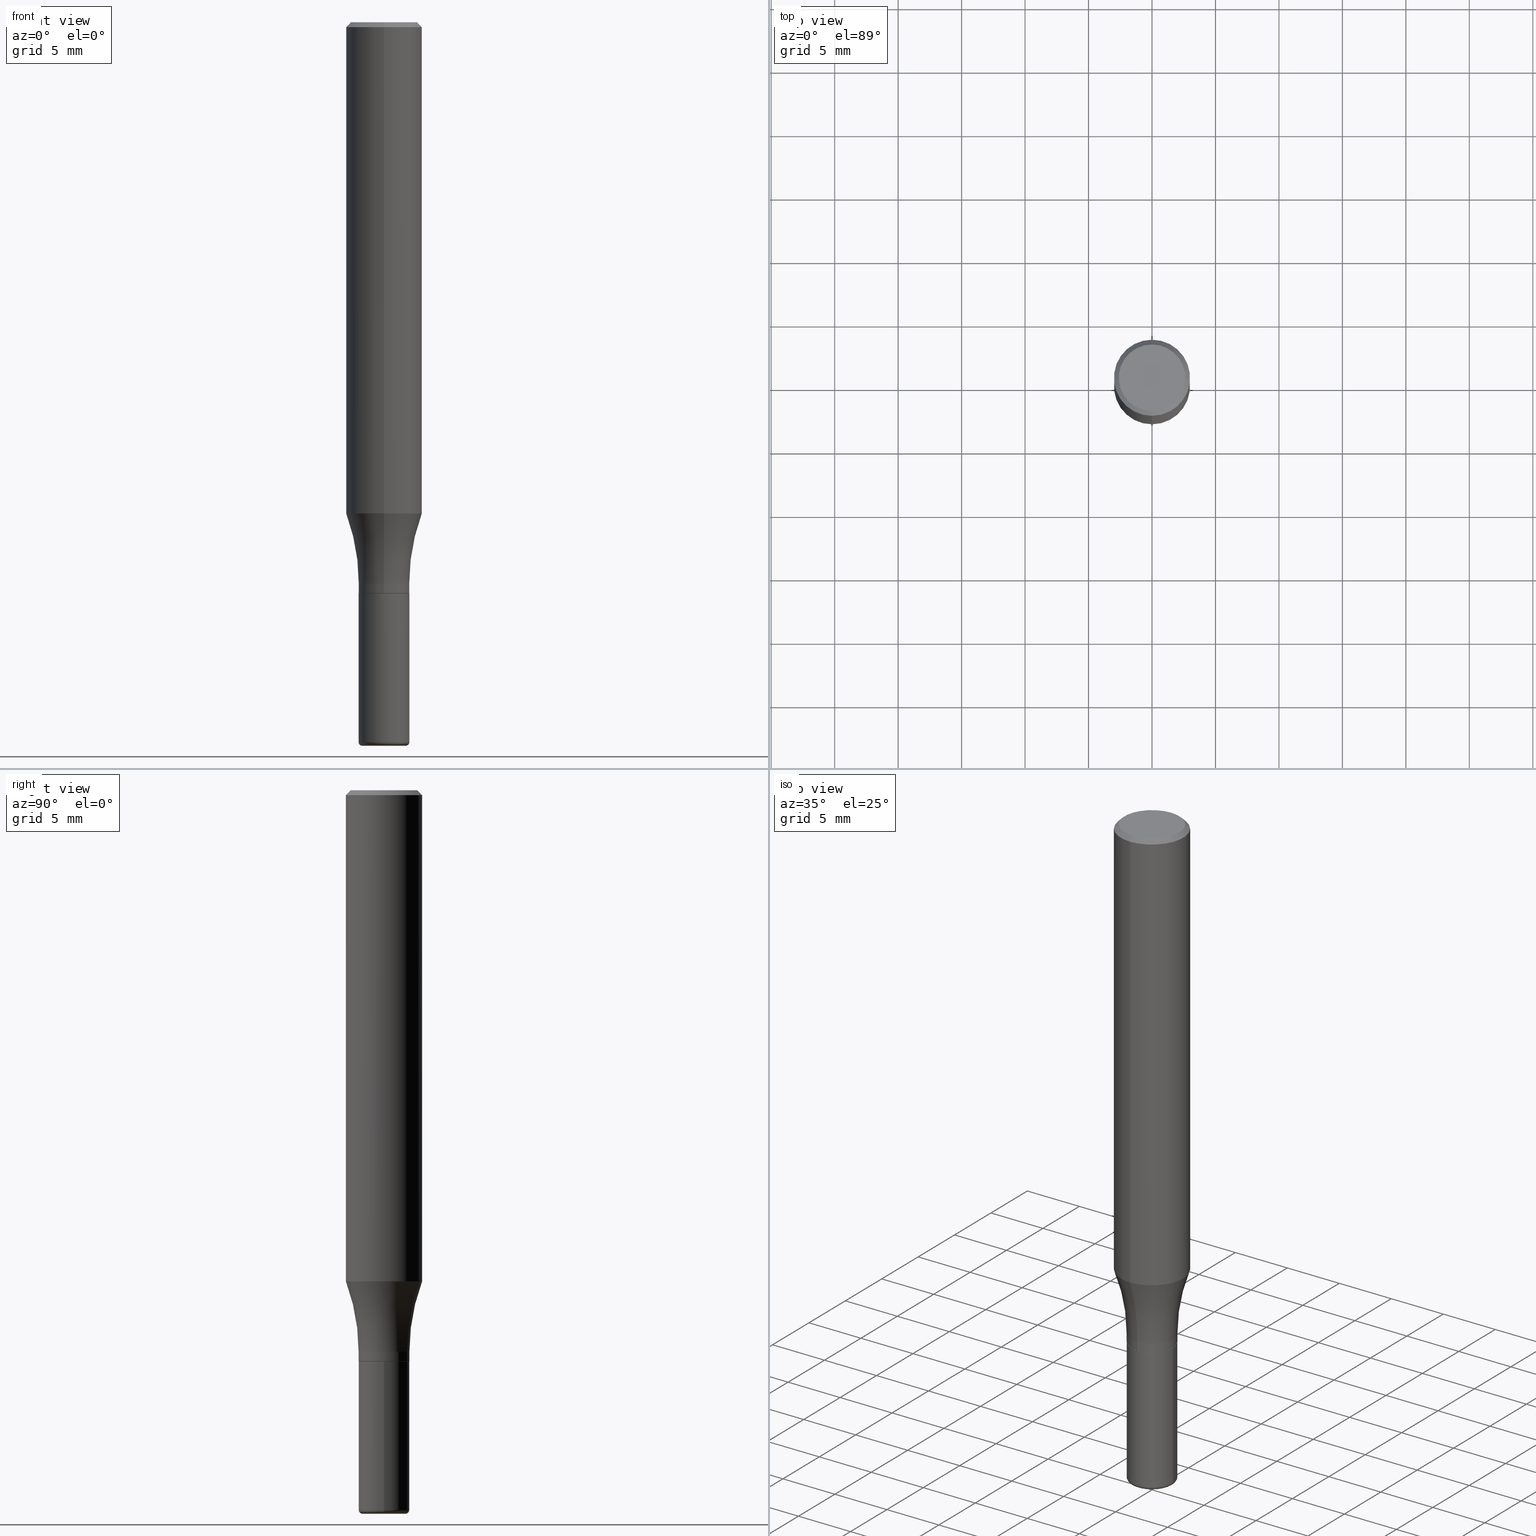
[diagram: canonical four-view strip — front | top / right | iso, engineering-drawing reading convention]
A machine part, canonical four-view strip (front | top / right | iso — engineering-drawing reading convention). The complete STEP part file that produces these views, byte-faithful:
ISO-10303-21;
HEADER;
FILE_DESCRIPTION (( 'STEP AP203' ),
    '1' );
FILE_NAME ('43446.STEP',
    '2024-02-29T19:33:05',
    ( '' ),
    ( '' ),
    'SwSTEP 2.0',
    'SolidWorks 2023',
    '' );
FILE_SCHEMA (( 'CONFIG_CONTROL_DESIGN' ));
ENDSEC;

DATA;
#1 = SECURITY_CLASSIFICATION_LEVEL ( 'unclassified' ) ;
#2 = ORIENTED_EDGE ( 'NONE', *, *, #412, .T. ) ;
#3 = CARTESIAN_POINT ( 'NONE',  ( 7.723156721521011834E-16, 0.1031000000000000111, -8.678692666830198749E-17 ) ) ;
#4 = AXIS2_PLACEMENT_3D ( 'NONE', #15, #174, #250 ) ;
#5 = CARTESIAN_POINT ( 'NONE',  ( 4.333291662919082677E-29, -6.184920093642825861E-15, -1.771700000000000497 ) ) ;
#6 = DIRECTION ( 'NONE',  ( -2.445838269977468989E-29, 3.490952245663952321E-15, 1.000000000000000000 ) ) ;
#7 = LINE ( 'NONE', #309, #206 ) ;
#8 = AXIS2_PLACEMENT_3D ( 'NONE', #397, #194, #283 ) ;
#9 = DIRECTION ( 'NONE',  ( -2.445468806185136597E-29, 3.491481338843145583E-15, 1.000000000000000000 ) ) ;
#10 = EDGE_LOOP ( 'NONE', ( #456, #177 ) ) ;
#11 = DIRECTION ( 'NONE',  ( -2.445838269977468989E-29, 3.490952245663952321E-15, 1.000000000000000000 ) ) ;
#12 = ORIENTED_EDGE ( 'NONE', *, *, #248, .T. ) ;
#13 = ORIENTED_EDGE ( 'NONE', *, *, #277, .F. ) ;
#14 = CARTESIAN_POINT ( 'NONE',  ( 4.259273019732651791E-29, -6.081113047863105345E-15, -1.741699999999999582 ) ) ;
#15 = CARTESIAN_POINT ( 'NONE',  ( 4.333291662919082677E-29, -6.184920093642825861E-15, -1.771700000000000497 ) ) ;
#16 = ORIENTED_EDGE ( 'NONE', *, *, #374, .T. ) ;
#17 = EDGE_LOOP ( 'NONE', ( #259, #300, #46, #376 ) ) ;
#18 = CARTESIAN_POINT ( 'NONE',  ( 5.487876547960064752E-29, -7.835233272497900762E-15, -2.244099999999999540 ) ) ;
#19 = AXIS2_PLACEMENT_3D ( 'NONE', #62, #213, #343 ) ;
#20 = CALENDAR_DATE ( 2024, 29, 2 ) ;
#21 = EDGE_CURVE ( 'NONE', #63, #22, #450, .T. ) ;
#22 = VERTEX_POINT ( 'NONE', #338 ) ;
#23 = CARTESIAN_POINT ( 'NONE',  ( -8.246878922347106931E-16, -0.1181000000000053951, -1.523436220366272131 ) ) ;
#24 = MECHANICAL_CONTEXT ( 'NONE', #238, 'mechanical' ) ;
#25 = TOROIDAL_SURFACE ( 'NONE', #101, 0.7037499999999999867, 0.6250000000000000000 ) ;
#26 = PLANE ( 'NONE',  #307 ) ;
#27 = CC_DESIGN_APPROVAL ( #269, ( #364 ) ) ;
#28 = AXIS2_PLACEMENT_3D ( 'NONE', #189, #314, #311 ) ;
#29 = PERSON_AND_ORGANIZATION ( #360, #417 ) ;
#30 = COORDINATED_UNIVERSAL_TIME_OFFSET ( 5, 0, .BEHIND. ) ;
#31 = DIRECTION ( 'NONE',  ( -4.937700262166401865E-15, -0.7071067811868105846, 0.7071067811862842278 ) ) ;
#32 = CARTESIAN_POINT ( 'NONE',  ( -6.680324177952438221E-45, 9.534846591063069195E-31, 2.731302498596515053E-16 ) ) ;
#33 = AXIS2_PLACEMENT_3D ( 'NONE', #155, #319, #161 ) ;
#34 = DIRECTION ( 'NONE',  ( 2.445838269977468989E-29, -3.490952245663951927E-15, -1.000000000000000000 ) ) ;
#35 = EDGE_CURVE ( 'NONE', #172, #449, #398, .T. ) ;
#36 = EDGE_LOOP ( 'NONE', ( #131, #413 ) ) ;
#37 = FACE_OUTER_BOUND ( 'NONE', #463, .T. ) ;
#38 = ORIENTED_EDGE ( 'NONE', *, *, #482, .T. ) ;
#39 = DIRECTION ( 'NONE',  ( -6.982962677686265922E-15, -1.000000000000000000, 3.490952245663952321E-15 ) ) ;
#40 = CIRCLE ( 'NONE', #434, 0.1181000000000000383 ) ;
#41 = APPROVAL_ROLE ( '' ) ;
#42 = VECTOR ( 'NONE', #31, 39.37007874015748854 ) ;
#43 = EDGE_LOOP ( 'NONE', ( #103, #373, #201, #440 ) ) ;
#44 = CYLINDRICAL_SURFACE ( 'NONE', #312, 0.07874999999999995892 ) ;
#45 = ADVANCED_FACE ( 'NONE', ( #108 ), #82, .T. ) ;
#46 = ORIENTED_EDGE ( 'NONE', *, *, #69, .T. ) ;
#47 = DIRECTION ( 'NONE',  ( -2.445838269977468989E-29, 3.490952245663952321E-15, 1.000000000000000000 ) ) ;
#48 = LINE ( 'NONE', #465, #418 ) ;
#49 = ADVANCED_BREP_SHAPE_REPRESENTATION ( '43446', ( #73, #239, #123 ), #158 ) ;
#50 = CARTESIAN_POINT ( 'NONE',  ( 3.668757404966126376E-31, -5.236428368495817893E-17, -0.01499999999999968373 ) ) ;
#51 = DIRECTION ( 'NONE',  ( -2.445468806185136877E-29, 3.491481338843145188E-15, 1.000000000000000000 ) ) ;
#52 = CARTESIAN_POINT ( 'NONE',  ( 8.391509709327160624E-16, 0.1180999999999946676, -1.523436220366273020 ) ) ;
#53 = LOCAL_TIME ( 14, 33, 5.000000000000000000, #477 ) ;
#54 = CIRCLE ( 'NONE', #292, 0.1181000000000000383 ) ;
#55 = TOROIDAL_SURFACE ( 'NONE', #226, 0.06694999999999999563, 0.01179999999999993381 ) ;
#56 = ORIENTED_EDGE ( 'NONE', *, *, #350, .F. ) ;
#57 = DIRECTION ( 'NONE',  ( -2.445838269977468989E-29, 3.490952245663952321E-15, 1.000000000000000000 ) ) ;
#58 = ORIENTED_EDGE ( 'NONE', *, *, #185, .T. ) ;
#59 = EDGE_CURVE ( 'NONE', #63, #383, #48, .T. ) ;
#60 = DIRECTION ( 'NONE',  ( -6.982962677686265922E-15, -1.000000000000000000, 3.490952245663951927E-15 ) ) ;
#61 = VERTEX_POINT ( 'NONE', #265 ) ;
#62 = CARTESIAN_POINT ( 'NONE',  ( 0.000000000000000000, 0.000000000000000000, 0.000000000000000000 ) ) ;
#63 = VERTEX_POINT ( 'NONE', #117 ) ;
#64 = CARTESIAN_POINT ( 'NONE',  ( -0.07874999999999994504, -6.430393235952897589E-15, -2.232299999999999951 ) ) ;
#65 = EDGE_LOOP ( 'NONE', ( #124, #297, #211, #505 ) ) ;
#66 = ORIENTED_EDGE ( 'NONE', *, *, #115, .T. ) ;
#67 =( CONVERSION_BASED_UNIT ( 'INCH', #143 ) LENGTH_UNIT ( ) NAMED_UNIT ( #118 ) );
#68 = VECTOR ( 'NONE', #407, 39.37007874015748143 ) ;
#69 = EDGE_CURVE ( 'NONE', #22, #335, #504, .T. ) ;
#70 = ORIENTED_EDGE ( 'NONE', *, *, #139, .T. ) ;
#71 = DIRECTION ( 'NONE',  ( 1.000000000000000000, -6.982962677686266711E-15, 0.000000000000000000 ) ) ;
#72 = DIRECTION ( 'NONE',  ( -1.000000000000000000, 6.982962677686265922E-15, -4.876176775795935793E-29 ) ) ;
#73 = MANIFOLD_SOLID_BREP ( 'Body-Move/Copy2[1]', #270 ) ;
#74 = PERSON_AND_ORGANIZATION ( #360, #417 ) ;
#75 = AXIS2_PLACEMENT_3D ( 'NONE', #107, #369, #299 ) ;
#76 = AXIS2_PLACEMENT_3D ( 'NONE', #5, #492, #285 ) ;
#77 = ADVANCED_FACE ( 'NONE', ( #148 ), #26, .F. ) ;
#78 = DIRECTION ( 'NONE',  ( 5.024295867789948556E-15, 0.7071067811868154696, 0.7071067811862793429 ) ) ;
#79 = PERSON_AND_ORGANIZATION ( #360, #417 ) ;
#80 = DIRECTION ( 'NONE',  ( 1.000000000000000000, -7.105427357601001070E-15, 4.926309029019398732E-29 ) ) ;
#81 = EDGE_CURVE ( 'NONE', #88, #358, #187, .T. ) ;
#82 = CONICAL_SURFACE ( 'NONE', #207, 0.1180999999999999966, 0.7853981633974495002 ) ;
#83 = EDGE_CURVE ( 'NONE', #420, #111, #321, .T. ) ;
#84 = ORIENTED_EDGE ( 'NONE', *, *, #275, .T. ) ;
#85 = DIRECTION ( 'NONE',  ( -6.982962677686265922E-15, -1.000000000000000000, 3.490952245663952716E-15 ) ) ;
#86 = PERSON_AND_ORGANIZATION ( #360, #417 ) ;
#87 = DIRECTION ( 'NONE',  ( -6.982962677686265922E-15, -1.000000000000000000, 4.626330217890367758E-15 ) ) ;
#88 = VERTEX_POINT ( 'NONE', #114 ) ;
#89 = EDGE_CURVE ( 'NONE', #345, #486, #137, .T. ) ;
#90 = DIRECTION ( 'NONE',  ( -2.445838269977468989E-29, 3.490952245663952321E-15, 1.000000000000000000 ) ) ;
#91 = LOCAL_TIME ( 14, 33, 5.000000000000000000, #425 ) ;
#92 = CARTESIAN_POINT ( 'NONE',  ( -5.499083108677931485E-16, -0.07874999999999995892, 2.749124893460361432E-16 ) ) ;
#93 = AXIS2_PLACEMENT_3D ( 'NONE', #478, #121, #236 ) ;
#94 = PLANE ( 'NONE',  #466 ) ;
#95 = CARTESIAN_POINT ( 'NONE',  ( 3.668757404966126376E-31, -5.236428368495817893E-17, -0.01499999999999968373 ) ) ;
#96 = CARTESIAN_POINT ( 'NONE',  ( -4.914259984421666652E-15, -0.7037500000000060929, -1.741699999999997139 ) ) ;
#97 = CARTESIAN_POINT ( 'NONE',  ( 3.726078609641658463E-29, -5.318243094613442822E-15, -1.523436220366272575 ) ) ;
#98 = VERTEX_POINT ( 'NONE', #181 ) ;
#99 = DIRECTION ( 'NONE',  ( -1.000000000000000000, 6.982962677686265922E-15, -4.883557194083112340E-29 ) ) ;
#100 = CC_DESIGN_DATE_AND_TIME_ASSIGNMENT ( #346, #351, ( #364 ) ) ;
#101 = AXIS2_PLACEMENT_3D ( 'NONE', #14, #132, #375 ) ;
#102 = PRODUCT_DEFINITION_FORMATION_WITH_SPECIFIED_SOURCE ( 'ANY', '', #322, .NOT_KNOWN. ) ;
#103 = ORIENTED_EDGE ( 'NONE', *, *, #350, .T. ) ;
#104 = EDGE_CURVE ( 'NONE', #160, #98, #515, .T. ) ;
#105 = DIRECTION ( 'NONE',  ( -2.445468806185136597E-29, 3.491481338843145583E-15, 1.000000000000000000 ) ) ;
#106 = ORIENTED_EDGE ( 'NONE', *, *, #248, .F. ) ;
#107 = CARTESIAN_POINT ( 'NONE',  ( 0.06694999999999999563, -8.261543143970648500E-15, -2.232299999999999951 ) ) ;
#108 = FACE_OUTER_BOUND ( 'NONE', #289, .T. ) ;
#109 = ORIENTED_EDGE ( 'NONE', *, *, #89, .T. ) ;
#110 = APPROVAL_STATUS ( 'not_yet_approved' ) ;
#111 = VERTEX_POINT ( 'NONE', #453 ) ;
#112 = LINE ( 'NONE', #511, #509 ) ;
#113 = CARTESIAN_POINT ( 'NONE',  ( 5.459020016047079569E-29, -7.794033792699553278E-15, -2.232299999999999951 ) ) ;
#114 = CARTESIAN_POINT ( 'NONE',  ( 6.993516876719189285E-16, 0.07874999999999386657, -1.741699999999999804 ) ) ;
#115 = EDGE_CURVE ( 'NONE', #385, #484, #40, .T. ) ;
#116 = CIRCLE ( 'NONE', #473, 0.1031000000000000111 ) ;
#117 = CARTESIAN_POINT ( 'NONE',  ( 5.577760475717216412E-16, 0.07824999999999379674, -1.771700000000000719 ) ) ;
#118 = DIMENSIONAL_EXPONENTS ( 1.000000000000000000, 0.000000000000000000, 0.000000000000000000, 0.000000000000000000, 0.000000000000000000, 0.000000000000000000, 0.000000000000000000 ) ;
#119 = LINE ( 'NONE', #363, #244 ) ;
#120 = ADVANCED_FACE ( 'NONE', ( #332 ), #122, .T. ) ;
#121 = DIRECTION ( 'NONE',  ( -2.445468806185136597E-29, 3.491481338843145583E-15, 1.000000000000000000 ) ) ;
#122 = CONICAL_SURFACE ( 'NONE', #76, 0.07824999999999997236, 0.7853981633978239785 ) ;
#123 = AXIS2_PLACEMENT_3D ( 'NONE', #223, #349, #435 ) ;
#124 = ORIENTED_EDGE ( 'NONE', *, *, #115, .F. ) ;
#125 = LINE ( 'NONE', #447, #381 ) ;
#126 = CARTESIAN_POINT ( 'NONE',  ( 0.000000000000000000, 0.000000000000000000, 0.000000000000000000 ) ) ;
#127 = CYLINDRICAL_SURFACE ( 'NONE', #479, 0.1181000000000000105 ) ;
#128 = CONICAL_SURFACE ( 'NONE', #416, 0.1180999999999999966, 0.7853981633974495002 ) ;
#129 = EDGE_LOOP ( 'NONE', ( #263, #134, #429, #271 ) ) ;
#130 = DIRECTION ( 'NONE',  ( -2.445838269977468989E-29, 3.490952245663952321E-15, 1.000000000000000000 ) ) ;
#131 = ORIENTED_EDGE ( 'NONE', *, *, #423, .F. ) ;
#132 = DIRECTION ( 'NONE',  ( -2.445838269977468989E-29, 3.490952245663952321E-15, 1.000000000000000000 ) ) ;
#133 = APPROVAL ( #110, 'UNSPECIFIED' ) ;
#134 = ORIENTED_EDGE ( 'NONE', *, *, #313, .T. ) ;
#135 = DIRECTION ( 'NONE',  ( 1.000000000000000000, -6.982962677686266711E-15, 4.883557194083113462E-29 ) ) ;
#136 = CARTESIAN_POINT ( 'NONE',  ( 4.332068743784095231E-29, -6.183174617519995461E-15, -1.771200000000000774 ) ) ;
#137 = CIRCLE ( 'NONE', #218, 0.07874999999999994504 ) ;
#138 = DIRECTION ( 'NONE',  ( -2.445838269977468989E-29, 3.490952245663952321E-15, 1.000000000000000000 ) ) ;
#139 = EDGE_CURVE ( 'NONE', #486, #403, #323, .T. ) ;
#140 = ORIENTED_EDGE ( 'NONE', *, *, #83, .T. ) ;
#141 = CYLINDRICAL_SURFACE ( 'NONE', #157, 0.07874999999999997280 ) ;
#142 = EDGE_LOOP ( 'NONE', ( #220, #494, #260, #365 ) ) ;
#143 = LENGTH_MEASURE_WITH_UNIT ( LENGTH_MEASURE( 0.02539999999999999897 ), #432 );
#144 = CIRCLE ( 'NONE', #205, 0.07874999999999994504 ) ;
#145 = CIRCLE ( 'NONE', #460, 0.06694999999999999563 ) ;
#146 = PERSON_AND_ORGANIZATION_ROLE ( 'creator' ) ;
#147 = DESIGN_CONTEXT ( 'detailed design', #427, 'design' ) ;
#148 = FACE_OUTER_BOUND ( 'NONE', #282, .T. ) ;
#149 = APPROVAL_DATE_TIME ( #503, #269 ) ;
#150 = AXIS2_PLACEMENT_3D ( 'NONE', #169, #178, #209 ) ;
#151 = CLOSED_SHELL ( 'NONE', ( #175, #163, #120, #294, #507, #318, #164, #446, #474, #229, #45, #257 ) ) ;
#152 = EDGE_CURVE ( 'NONE', #335, #358, #326, .T. ) ;
#153 = CARTESIAN_POINT ( 'NONE',  ( 4.332068743784095231E-29, -6.183174617519995461E-15, -1.771200000000000774 ) ) ;
#154 = ORIENTED_EDGE ( 'NONE', *, *, #168, .T. ) ;
#155 = CARTESIAN_POINT ( 'NONE',  ( -0.06694999999999999563, -7.318325431108165741E-15, -2.232299999999999951 ) ) ;
#156 = DIRECTION ( 'NONE',  ( 6.982962677686265922E-15, 1.000000000000000000, -3.490952245663951927E-15 ) ) ;
#157 = AXIS2_PLACEMENT_3D ( 'NONE', #166, #105, #333 ) ;
#158 =( GEOMETRIC_REPRESENTATION_CONTEXT ( 3 ) GLOBAL_UNCERTAINTY_ASSIGNED_CONTEXT ( ( #342 ) ) GLOBAL_UNIT_ASSIGNED_CONTEXT ( ( #67, #221, #183 ) ) REPRESENTATION_CONTEXT ( 'NONE', 'WORKASPACE' ) );
#159 = DIRECTION ( 'NONE',  ( -2.445838269977468989E-29, 3.490952245663952321E-15, 1.000000000000000000 ) ) ;
#160 = VERTEX_POINT ( 'NONE', #384 ) ;
#161 = DIRECTION ( 'NONE',  ( -1.000000000000000000, 7.105427357601033413E-15, 0.000000000000000000 ) ) ;
#162 = ADVANCED_FACE ( 'NONE', ( #230 ), #237, .T. ) ;
#163 = ADVANCED_FACE ( 'NONE', ( #501 ), #128, .T. ) ;
#164 = ADVANCED_FACE ( 'NONE', ( #200 ), #44, .T. ) ;
#165 = CARTESIAN_POINT ( 'NONE',  ( 4.259916514819756909E-29, -6.080191526272904006E-15, -1.741699999999999582 ) ) ;
#166 = CARTESIAN_POINT ( 'NONE',  ( 0.000000000000000000, 0.000000000000000000, 0.000000000000000000 ) ) ;
#167 = AXIS2_PLACEMENT_3D ( 'NONE', #136, #130, #249 ) ;
#168 = EDGE_CURVE ( 'NONE', #449, #160, #519, .T. ) ;
#169 = CARTESIAN_POINT ( 'NONE',  ( 4.333291662919082677E-29, -6.184920093642825861E-15, -1.771700000000000497 ) ) ;
#170 = DIRECTION ( 'NONE',  ( 1.000000000000000000, -6.982962677686261977E-15, 0.000000000000000000 ) ) ;
#171 = ORIENTED_EDGE ( 'NONE', *, *, #423, .T. ) ;
#172 = VERTEX_POINT ( 'NONE', #3 ) ;
#173 = CARTESIAN_POINT ( 'NONE',  ( -5.499083108677499583E-16, -0.07875000000000616229, -1.771200000000000552 ) ) ;
#174 = DIRECTION ( 'NONE',  ( -2.445838269977468989E-29, 3.490952245663952321E-15, 1.000000000000000000 ) ) ;
#175 = ADVANCED_FACE ( 'NONE', ( #367 ), #127, .T. ) ;
#176 = CIRCLE ( 'NONE', #224, 0.07875000000000000056 ) ;
#177 = ORIENTED_EDGE ( 'NONE', *, *, #83, .F. ) ;
#178 = DIRECTION ( 'NONE',  ( -2.445838269977468989E-29, 3.490952245663952321E-15, 1.000000000000000000 ) ) ;
#179 = APPROVAL_ROLE ( '' ) ;
#180 = DIRECTION ( 'NONE',  ( -6.982962677686266711E-15, -1.000000000000000000, 3.490952245663952321E-15 ) ) ;
#181 = CARTESIAN_POINT ( 'NONE',  ( 8.246878922347483612E-16, 0.1180999999999999411, -0.01500000000000009659 ) ) ;
#182 = AXIS2_PLACEMENT_3D ( 'NONE', #405, #353, #39 ) ;
#183 =( NAMED_UNIT ( * ) SI_UNIT ( $, .STERADIAN. ) SOLID_ANGLE_UNIT ( ) );
#184 = APPROVAL_PERSON_ORGANIZATION ( #74, #269, #225 ) ;
#185 = EDGE_CURVE ( 'NONE', #449, #172, #116, .T. ) ;
#186 = DIRECTION ( 'NONE',  ( 1.000000000000000000, -6.982962677686269866E-15, 0.000000000000000000 ) ) ;
#187 = CIRCLE ( 'NONE', #28, 0.07874999999999994504 ) ;
#188 = COORDINATED_UNIVERSAL_TIME_OFFSET ( 5, 0, .BEHIND. ) ;
#189 = CARTESIAN_POINT ( 'NONE',  ( 4.259916514819756909E-29, -6.080191526272904006E-15, -1.741699999999999582 ) ) ;
#190 = CC_DESIGN_APPROVAL ( #520, ( #380 ) ) ;
#191 = FACE_OUTER_BOUND ( 'NONE', #43, .T. ) ;
#192 = AXIS2_PLACEMENT_3D ( 'NONE', #448, #80, #233 ) ;
#193 = DIRECTION ( 'NONE',  ( -6.982962677686265922E-15, -1.000000000000000000, 3.490952245663952716E-15 ) ) ;
#194 = DIRECTION ( 'NONE',  ( -2.445468806185136597E-29, 3.491481338843145583E-15, 1.000000000000000000 ) ) ;
#195 = APPROVAL_DATE_TIME ( #475, #520 ) ;
#196 = CYLINDRICAL_SURFACE ( 'NONE', #305, 0.07874999999999995892 ) ;
#197 = VECTOR ( 'NONE', #495, 39.37007874015748143 ) ;
#198 = CALENDAR_DATE ( 2024, 29, 2 ) ;
#199 = EDGE_LOOP ( 'NONE', ( #401, #154, #336, #284 ) ) ;
#200 = FACE_OUTER_BOUND ( 'NONE', #129, .T. ) ;
#201 = ORIENTED_EDGE ( 'NONE', *, *, #298, .F. ) ;
#202 = DIRECTION ( 'NONE',  ( -2.445468806185136597E-29, 3.491481338843145583E-15, 1.000000000000000000 ) ) ;
#203 = ADVANCED_FACE ( 'NONE', ( #402 ), #370, .T. ) ;
#204 = FACE_OUTER_BOUND ( 'NONE', #216, .T. ) ;
#205 = AXIS2_PLACEMENT_3D ( 'NONE', #165, #327, #517 ) ;
#206 = VECTOR ( 'NONE', #471, 39.37007874015748143 ) ;
#207 = AXIS2_PLACEMENT_3D ( 'NONE', #95, #247, #409 ) ;
#208 = EDGE_LOOP ( 'NONE', ( #84, #445, #499, #493 ) ) ;
#209 = DIRECTION ( 'NONE',  ( -6.982962677686267499E-15, -1.000000000000000000, 3.491179544618867914E-15 ) ) ;
#210 = ORIENTED_EDGE ( 'NONE', *, *, #89, .F. ) ;
#211 = ORIENTED_EDGE ( 'NONE', *, *, #81, .T. ) ;
#212 = EDGE_LOOP ( 'NONE', ( #361, #109, #70, #488 ) ) ;
#213 = DIRECTION ( 'NONE',  ( -2.445468806185136597E-29, 3.491481338843145583E-15, 1.000000000000000000 ) ) ;
#214 = ORIENTED_EDGE ( 'NONE', *, *, #266, .T. ) ;
#215 = CARTESIAN_POINT ( 'NONE',  ( 0.07875000000000000056, -6.735765798896194427E-15, -1.771700000000000053 ) ) ;
#216 = EDGE_LOOP ( 'NONE', ( #286, #13, #378, #278 ) ) ;
#217 = APPROVAL_PERSON_ORGANIZATION ( #506, #133, #179 ) ;
#218 = AXIS2_PLACEMENT_3D ( 'NONE', #113, #431, #71 ) ;
#219 = ORIENTED_EDGE ( 'NONE', *, *, #414, .T. ) ;
#220 = ORIENTED_EDGE ( 'NONE', *, *, #277, .T. ) ;
#221 =( NAMED_UNIT ( * ) PLANE_ANGLE_UNIT ( ) SI_UNIT ( $, .RADIAN. ) );
#222 = EDGE_CURVE ( 'NONE', #385, #88, #352, .T. ) ;
#223 = CARTESIAN_POINT ( 'NONE',  ( 0.000000000000000000, 0.000000000000000000, 0.000000000000000000 ) ) ;
#224 = AXIS2_PLACEMENT_3D ( 'NONE', #325, #481, #395 ) ;
#225 = APPROVAL_ROLE ( '' ) ;
#226 = AXIS2_PLACEMENT_3D ( 'NONE', #415, #258, #135 ) ;
#227 = AXIS2_PLACEMENT_3D ( 'NONE', #310, #469, #186 ) ;
#228 = CALENDAR_DATE ( 2024, 29, 2 ) ;
#229 = ADVANCED_FACE ( 'NONE', ( #37 ), #94, .F. ) ;
#230 = FACE_OUTER_BOUND ( 'NONE', #212, .T. ) ;
#231 = PERSON_AND_ORGANIZATION_ROLE ( 'design_supplier' ) ;
#232 = CC_DESIGN_SECURITY_CLASSIFICATION ( #380, ( #102 ) ) ;
#233 = DIRECTION ( 'NONE',  ( 7.105427357601001859E-15, 1.000000000000000000, 0.000000000000000000 ) ) ;
#234 = CIRCLE ( 'NONE', #262, 0.6250000000000000000 ) ;
#235 = DATE_TIME_ROLE ( 'classification_date' ) ;
#236 = DIRECTION ( 'NONE',  ( 1.000000000000000000, -6.982962677686266711E-15, 0.000000000000000000 ) ) ;
#237 = CYLINDRICAL_SURFACE ( 'NONE', #19, 0.07874999999999997280 ) ;
#238 = APPLICATION_CONTEXT ( 'configuration controlled 3d designs of mechanical parts and assemblies' ) ;
#239 = MANIFOLD_SOLID_BREP ( 'Body-Move/Copy2[2]', #151 ) ;
#240 = ORIENTED_EDGE ( 'NONE', *, *, #35, .F. ) ;
#241 = EDGE_CURVE ( 'NONE', #385, #98, #119, .T. ) ;
#242 = DIRECTION ( 'NONE',  ( -2.445838269977468989E-29, 3.490952245663952321E-15, 1.000000000000000000 ) ) ;
#243 = DIRECTION ( 'NONE',  ( -6.982962677686265922E-15, -1.000000000000000000, 3.490952245663952716E-15 ) ) ;
#244 = VECTOR ( 'NONE', #518, 39.37007874015748143 ) ;
#245 = ORIENTED_EDGE ( 'NONE', *, *, #35, .T. ) ;
#246 = FACE_OUTER_BOUND ( 'NONE', #36, .T. ) ;
#247 = DIRECTION ( 'NONE',  ( 2.445838269977468989E-29, -3.490952245663952321E-15, -1.000000000000000000 ) ) ;
#248 = EDGE_CURVE ( 'NONE', #420, #345, #362, .T. ) ;
#249 = DIRECTION ( 'NONE',  ( -6.982962677686265922E-15, -1.000000000000000000, 3.469013325287954477E-15 ) ) ;
#250 = DIRECTION ( 'NONE',  ( -6.982962677686267499E-15, -1.000000000000000000, 3.491179544618867914E-15 ) ) ;
#251 = CARTESIAN_POINT ( 'NONE',  ( 4.332637083918206427E-29, -6.185857488028401081E-15, -1.771700000000000053 ) ) ;
#252 = APPROVAL_PERSON_ORGANIZATION ( #86, #520, #41 ) ;
#253 = AXIS2_PLACEMENT_3D ( 'NONE', #422, #287, #451 ) ;
#254 = TOROIDAL_SURFACE ( 'NONE', #293, 0.7037499999999999867, 0.6250000000000000000 ) ;
#255 = CARTESIAN_POINT ( 'NONE',  ( -7.587710785535310407E-16, -0.1031000000000000111, 6.330474263876051214E-16 ) ) ;
#256 = ORIENTED_EDGE ( 'NONE', *, *, #412, .F. ) ;
#257 = ADVANCED_FACE ( 'NONE', ( #317 ), #315, .T. ) ;
#258 = DIRECTION ( 'NONE',  ( -2.445468806185136597E-29, 3.491481338843145583E-15, 1.000000000000000000 ) ) ;
#259 = ORIENTED_EDGE ( 'NONE', *, *, #59, .F. ) ;
#260 = ORIENTED_EDGE ( 'NONE', *, *, #104, .F. ) ;
#261 = CARTESIAN_POINT ( 'NONE',  ( 4.259273019732651791E-29, -6.081113047863105345E-15, -1.741699999999999582 ) ) ;
#262 = AXIS2_PLACEMENT_3D ( 'NONE', #96, #99, #329 ) ;
#263 = ORIENTED_EDGE ( 'NONE', *, *, #512, .F. ) ;
#264 = APPLICATION_PROTOCOL_DEFINITION ( 'international standard', 'config_control_design', 1994, #238 ) ;
#265 = CARTESIAN_POINT ( 'NONE',  ( -0.07875000000000000056, -6.430393235952897589E-15, -1.771700000000000053 ) ) ;
#266 = EDGE_CURVE ( 'NONE', #61, #403, #176, .T. ) ;
#267 = FACE_OUTER_BOUND ( 'NONE', #65, .T. ) ;
#268 = AXIS2_PLACEMENT_3D ( 'NONE', #366, #6, #288 ) ;
#269 = APPROVAL ( #386, 'UNSPECIFIED' ) ;
#270 = CLOSED_SHELL ( 'NONE', ( #203, #406, #77, #162, #454, #391 ) ) ;
#271 = ORIENTED_EDGE ( 'NONE', *, *, #81, .F. ) ;
#272 = DIRECTION ( 'NONE',  ( -2.445838269977468989E-29, 3.490952245663952321E-15, 1.000000000000000000 ) ) ;
#273 = AXIS2_PLACEMENT_3D ( 'NONE', #464, #11, #411 ) ;
#274 = DIRECTION ( 'NONE',  ( -2.445838269977468989E-29, 3.490952245663952321E-15, 1.000000000000000000 ) ) ;
#275 = EDGE_CURVE ( 'NONE', #486, #345, #489, .T. ) ;
#276 = EDGE_CURVE ( 'NONE', #172, #98, #125, .T. ) ;
#277 = EDGE_CURVE ( 'NONE', #484, #385, #54, .T. ) ;
#278 = ORIENTED_EDGE ( 'NONE', *, *, #298, .T. ) ;
#279 = DIRECTION ( 'NONE',  ( 4.937700262164553564E-15, 0.7071067811865459074, -0.7071067811865491270 ) ) ;
#280 = SHAPE_DEFINITION_REPRESENTATION ( #328, #49 ) ;
#281 = CARTESIAN_POINT ( 'NONE',  ( 0.000000000000000000, 0.000000000000000000, 0.000000000000000000 ) ) ;
#282 = EDGE_LOOP ( 'NONE', ( #16, #214 ) ) ;
#283 = DIRECTION ( 'NONE',  ( 1.000000000000000000, -6.982962677686266711E-15, 4.883557194083113462E-29 ) ) ;
#284 = ORIENTED_EDGE ( 'NONE', *, *, #276, .F. ) ;
#285 = DIRECTION ( 'NONE',  ( -6.982962677686267499E-15, -1.000000000000000000, 3.491179544618867914E-15 ) ) ;
#286 = ORIENTED_EDGE ( 'NONE', *, *, #222, .F. ) ;
#287 = DIRECTION ( 'NONE',  ( -2.438088387897960049E-29, 3.491481338843145188E-15, 1.000000000000000000 ) ) ;
#288 = DIRECTION ( 'NONE',  ( -6.982962677686265922E-15, -1.000000000000000000, 3.487819265831411744E-15 ) ) ;
#289 = EDGE_LOOP ( 'NONE', ( #324, #240, #424, #437 ) ) ;
#290 = CARTESIAN_POINT ( 'NONE',  ( -5.499083108677504514E-16, -0.07875000000000602352, -1.741699999999999360 ) ) ;
#291 = PLANE ( 'NONE',  #439 ) ;
#292 = AXIS2_PLACEMENT_3D ( 'NONE', #443, #485, #87 ) ;
#293 = AXIS2_PLACEMENT_3D ( 'NONE', #261, #392, #180 ) ;
#294 = ADVANCED_FACE ( 'NONE', ( #191 ), #196, .T. ) ;
#295 = AXIS2_PLACEMENT_3D ( 'NONE', #153, #57, #500 ) ;
#296 = ORIENTED_EDGE ( 'NONE', *, *, #355, .F. ) ;
#297 = ORIENTED_EDGE ( 'NONE', *, *, #222, .T. ) ;
#298 = EDGE_CURVE ( 'NONE', #358, #88, #144, .T. ) ;
#299 = DIRECTION ( 'NONE',  ( 1.000000000000000000, -6.982962677686251722E-15, 0.000000000000000000 ) ) ;
#300 = ORIENTED_EDGE ( 'NONE', *, *, #21, .T. ) ;
#301 = CARTESIAN_POINT ( 'NONE',  ( -8.246878922347480654E-16, -0.1181000000000000105, 4.122814602129128181E-16 ) ) ;
#302 = CARTESIAN_POINT ( 'NONE',  ( 0.07874999999999994504, -8.343942103567346623E-15, -2.232299999999999951 ) ) ;
#303 = CC_DESIGN_PERSON_AND_ORGANIZATION_ASSIGNMENT ( #510, #146, ( #102 ) ) ;
#304 = CARTESIAN_POINT ( 'NONE',  ( 5.499083108678366344E-16, 0.07874999999999381106, -1.771700000000000497 ) ) ;
#305 = AXIS2_PLACEMENT_3D ( 'NONE', #281, #90, #243 ) ;
#306 = DATE_AND_TIME ( #513, #91 ) ;
#307 = AXIS2_PLACEMENT_3D ( 'NONE', #304, #308, #72 ) ;
#308 = DIRECTION ( 'NONE',  ( 2.438088387897960049E-29, -3.491481338843145188E-15, -1.000000000000000000 ) ) ;
#309 = CARTESIAN_POINT ( 'NONE',  ( -0.07874999999999997280, 5.595524044110787031E-16, -3.873661383575737091E-30 ) ) ;
#310 = CARTESIAN_POINT ( 'NONE',  ( 5.487876547960064752E-29, -7.835233272497900762E-15, -2.244099999999999540 ) ) ;
#311 = DIRECTION ( 'NONE',  ( -6.982962677686265922E-15, -1.000000000000000000, 3.469013325287955660E-15 ) ) ;
#312 = AXIS2_PLACEMENT_3D ( 'NONE', #476, #272, #193 ) ;
#313 = EDGE_CURVE ( 'NONE', #383, #335, #508, .T. ) ;
#314 = DIRECTION ( 'NONE',  ( -2.445838269977468989E-29, 3.490952245663952321E-15, 1.000000000000000000 ) ) ;
#315 = CYLINDRICAL_SURFACE ( 'NONE', #182, 0.1181000000000000105 ) ;
#316 = EDGE_LOOP ( 'NONE', ( #106, #140, #2, #210 ) ) ;
#317 = FACE_OUTER_BOUND ( 'NONE', #442, .T. ) ;
#318 = ADVANCED_FACE ( 'NONE', ( #204 ), #25, .F. ) ;
#319 = DIRECTION ( 'NONE',  ( 7.105427357601001859E-15, 1.000000000000000000, -3.491481338843145583E-15 ) ) ;
#320 = LOCAL_TIME ( 14, 33, 5.000000000000000000, #188 ) ;
#321 = CIRCLE ( 'NONE', #227, 0.06694999999999999563 ) ;
#322 = PRODUCT ( '43446', '43446', '', ( #24 ) ) ;
#323 = LINE ( 'NONE', #410, #339 ) ;
#324 = ORIENTED_EDGE ( 'NONE', *, *, #168, .F. ) ;
#325 = CARTESIAN_POINT ( 'NONE',  ( 4.332637083918206427E-29, -6.185857488028401081E-15, -1.771700000000000053 ) ) ;
#326 = LINE ( 'NONE', #92, #68 ) ;
#327 = DIRECTION ( 'NONE',  ( -2.445838269977468989E-29, 3.490952245663952321E-15, 1.000000000000000000 ) ) ;
#328 = PRODUCT_DEFINITION_SHAPE ( 'NONE', 'NONE',  #364 ) ;
#329 = DIRECTION ( 'NONE',  ( -6.982962677686265133E-15, -1.000000000000000000, 0.000000000000000000 ) ) ;
#330 = CIRCLE ( 'NONE', #273, 0.1180999999999999966 ) ;
#331 = DIRECTION ( 'NONE',  ( -6.982962677686267499E-15, -1.000000000000000000, 3.491179544618867914E-15 ) ) ;
#332 = FACE_OUTER_BOUND ( 'NONE', #421, .T. ) ;
#333 = DIRECTION ( 'NONE',  ( 1.000000000000000000, -6.982962677686267499E-15, 4.876176775795935793E-29 ) ) ;
#334 = EDGE_CURVE ( 'NONE', #484, #358, #234, .T. ) ;
#335 = VERTEX_POINT ( 'NONE', #173 ) ;
#336 = ORIENTED_EDGE ( 'NONE', *, *, #104, .T. ) ;
#337 = FACE_OUTER_BOUND ( 'NONE', #17, .T. ) ;
#338 = CARTESIAN_POINT ( 'NONE',  ( -5.464168295289068526E-16, -0.07825000000000616185, -1.771700000000000053 ) ) ;
#339 = VECTOR ( 'NONE', #51, 39.37007874015748143 ) ;
#340 = ORIENTED_EDGE ( 'NONE', *, *, #241, .F. ) ;
#341 = CARTESIAN_POINT ( 'NONE',  ( -0.06694999999999999563, -7.297003149597495823E-15, -2.244099999999999540 ) ) ;
#342 = UNCERTAINTY_MEASURE_WITH_UNIT (LENGTH_MEASURE( 1.000000000000000082E-05 ), #67, 'distance_accuracy_value', 'NONE');
#343 = DIRECTION ( 'NONE',  ( 1.000000000000000000, -6.982962677686267499E-15, 4.876176775795935793E-29 ) ) ;
#344 = ORIENTED_EDGE ( 'NONE', *, *, #275, .F. ) ;
#345 = VERTEX_POINT ( 'NONE', #64 ) ;
#346 = DATE_AND_TIME ( #20, #320 ) ;
#347 = CIRCLE ( 'NONE', #396, 0.07875000000000000056 ) ;
#348 = APPLICATION_PROTOCOL_DEFINITION ( 'international standard', 'config_control_design', 1994, #427 ) ;
#349 = DIRECTION ( 'NONE',  ( 0.000000000000000000, 0.000000000000000000, 1.000000000000000000 ) ) ;
#350 = EDGE_CURVE ( 'NONE', #335, #383, #388, .T. ) ;
#351 = DATE_TIME_ROLE ( 'creation_date' ) ;
#352 = CIRCLE ( 'NONE', #192, 0.6250000000000000000 ) ;
#353 = DIRECTION ( 'NONE',  ( -2.445838269977468989E-29, 3.490952245663952321E-15, 1.000000000000000000 ) ) ;
#354 = PERSON_AND_ORGANIZATION_ROLE ( 'classification_officer' ) ;
#355 = EDGE_CURVE ( 'NONE', #98, #160, #330, .T. ) ;
#356 = CARTESIAN_POINT ( 'NONE',  ( -8.102248135368174406E-16, -0.1181000000000000522, -0.01499999999999927260 ) ) ;
#357 = PERSON_AND_ORGANIZATION ( #360, #417 ) ;
#358 = VERTEX_POINT ( 'NONE', #290 ) ;
#359 = DIRECTION ( 'NONE',  ( 6.982962677686265922E-15, 1.000000000000000000, -3.487819265831411744E-15 ) ) ;
#360 = PERSON ( 'UNSPECIFIED', 'UNSPECIFIED', 'UNSPECIFIED', ('UNSPECIFIED'), ('UNSPECIFIED'), ('UNSPECIFIED') ) ;
#361 = ORIENTED_EDGE ( 'NONE', *, *, #483, .F. ) ;
#362 = CIRCLE ( 'NONE', #33, 0.01179999999999994248 ) ;
#363 = CARTESIAN_POINT ( 'NONE',  ( 8.391509709326782957E-16, 0.1181000000000000105, -4.122814602129128181E-16 ) ) ;
#364 = PRODUCT_DEFINITION ( 'UNKNOWN', '', #102, #147 ) ;
#365 = ORIENTED_EDGE ( 'NONE', *, *, #414, .F. ) ;
#366 = CARTESIAN_POINT ( 'NONE',  ( 3.668757404966126376E-31, -5.236428368495817893E-17, -0.01499999999999968373 ) ) ;
#367 = FACE_OUTER_BOUND ( 'NONE', #142, .T. ) ;
#368 = DIRECTION ( 'NONE',  ( 1.000000000000000000, -6.982962677686269866E-15, 0.000000000000000000 ) ) ;
#369 = DIRECTION ( 'NONE',  ( -6.982962677686266711E-15, -1.000000000000000000, 3.491481338843145583E-15 ) ) ;
#370 = TOROIDAL_SURFACE ( 'NONE', #8, 0.06694999999999999563, 0.01179999999999993381 ) ;
#371 = CONICAL_SURFACE ( 'NONE', #389, 0.07824999999999997236, 0.7853981633978239785 ) ;
#372 = DIRECTION ( 'NONE',  ( -6.982962677686265922E-15, -1.000000000000000000, 4.626330217890367758E-15 ) ) ;
#373 = ORIENTED_EDGE ( 'NONE', *, *, #512, .T. ) ;
#374 = EDGE_CURVE ( 'NONE', #403, #61, #347, .T. ) ;
#375 = DIRECTION ( 'NONE',  ( -6.982962677686266711E-15, -1.000000000000000000, 3.490952245663952321E-15 ) ) ;
#376 = ORIENTED_EDGE ( 'NONE', *, *, #313, .F. ) ;
#377 = PLANE ( 'NONE',  #253 ) ;
#378 = ORIENTED_EDGE ( 'NONE', *, *, #334, .T. ) ;
#379 = CARTESIAN_POINT ( 'NONE',  ( 4.333291662919082677E-29, -6.184920093642825861E-15, -1.771700000000000497 ) ) ;
#380 = SECURITY_CLASSIFICATION ( '', '', #1 ) ;
#381 = VECTOR ( 'NONE', #279, 39.37007874015748143 ) ;
#382 = CC_DESIGN_PERSON_AND_ORGANIZATION_ASSIGNMENT ( #29, #387, ( #364 ) ) ;
#383 = VERTEX_POINT ( 'NONE', #497 ) ;
#384 = CARTESIAN_POINT ( 'NONE',  ( -8.102248135368174406E-16, -0.1181000000000000522, -0.01499999999999927260 ) ) ;
#385 = VERTEX_POINT ( 'NONE', #52 ) ;
#386 = APPROVAL_STATUS ( 'not_yet_approved' ) ;
#387 = PERSON_AND_ORGANIZATION_ROLE ( 'creator' ) ;
#388 = CIRCLE ( 'NONE', #167, 0.07874999999999997280 ) ;
#389 = AXIS2_PLACEMENT_3D ( 'NONE', #379, #47, #331 ) ;
#390 = PERSON_AND_ORGANIZATION ( #360, #417 ) ;
#391 = ADVANCED_FACE ( 'NONE', ( #491 ), #377, .F. ) ;
#392 = DIRECTION ( 'NONE',  ( -2.445838269977468989E-29, 3.490952245663952321E-15, 1.000000000000000000 ) ) ;
#393 = CARTESIAN_POINT ( 'NONE',  ( -5.464168295289068526E-16, -0.07825000000000616185, -1.771700000000000053 ) ) ;
#394 = DATE_AND_TIME ( #516, #53 ) ;
#395 = DIRECTION ( 'NONE',  ( 1.000000000000000000, -6.982962677686261977E-15, 0.000000000000000000 ) ) ;
#396 = AXIS2_PLACEMENT_3D ( 'NONE', #251, #9, #170 ) ;
#397 = CARTESIAN_POINT ( 'NONE',  ( 5.459020016047079569E-29, -7.794033792699553278E-15, -2.232299999999999951 ) ) ;
#398 = CIRCLE ( 'NONE', #467, 0.1031000000000000111 ) ;
#399 = APPROVAL_STATUS ( 'not_yet_approved' ) ;
#400 = CARTESIAN_POINT ( 'NONE',  ( 7.199434520694541042E-16, 0.1031000000000000111, -2.233520515981277648E-16 ) ) ;
#401 = ORIENTED_EDGE ( 'NONE', *, *, #185, .F. ) ;
#402 = FACE_OUTER_BOUND ( 'NONE', #496, .T. ) ;
#403 = VERTEX_POINT ( 'NONE', #215 ) ;
#404 = CIRCLE ( 'NONE', #150, 0.07824999999999997236 ) ;
#405 = CARTESIAN_POINT ( 'NONE',  ( 0.000000000000000000, 0.000000000000000000, 0.000000000000000000 ) ) ;
#406 = ADVANCED_FACE ( 'NONE', ( #457 ), #141, .T. ) ;
#407 = DIRECTION ( 'NONE',  ( -2.445838269977468989E-29, 3.490952245663951927E-15, 1.000000000000000000 ) ) ;
#408 = CARTESIAN_POINT ( 'NONE',  ( 4.333291662919082677E-29, -6.184920093642825861E-15, -1.771700000000000497 ) ) ;
#409 = DIRECTION ( 'NONE',  ( 6.982962677686265922E-15, 1.000000000000000000, -3.487819265831411744E-15 ) ) ;
#410 = CARTESIAN_POINT ( 'NONE',  ( 0.07874999999999997280, -5.499083108677933457E-16, 3.839989210939298316E-30 ) ) ;
#411 = DIRECTION ( 'NONE',  ( -6.982962677686265922E-15, -1.000000000000000000, 3.487819265831411744E-15 ) ) ;
#412 = EDGE_CURVE ( 'NONE', #111, #486, #458, .T. ) ;
#413 = ORIENTED_EDGE ( 'NONE', *, *, #21, .F. ) ;
#414 = EDGE_CURVE ( 'NONE', #484, #160, #455, .T. ) ;
#415 = CARTESIAN_POINT ( 'NONE',  ( 5.459020016047079569E-29, -7.794033792699553278E-15, -2.232299999999999951 ) ) ;
#416 = AXIS2_PLACEMENT_3D ( 'NONE', #50, #438, #359 ) ;
#417 = ORGANIZATION ( 'UNSPECIFIED', 'UNSPECIFIED', '' ) ;
#418 = VECTOR ( 'NONE', #78, 39.37007874015748854 ) ;
#419 = DIRECTION ( 'NONE',  ( -2.445838269977468989E-29, 3.490952245663951927E-15, 1.000000000000000000 ) ) ;
#420 = VERTEX_POINT ( 'NONE', #341 ) ;
#421 = EDGE_LOOP ( 'NONE', ( #171, #459, #56, #502 ) ) ;
#422 = CARTESIAN_POINT ( 'NONE',  ( 5.551509471537902220E-29, -7.744107304173346366E-15, -2.244099999999999540 ) ) ;
#423 = EDGE_CURVE ( 'NONE', #22, #63, #404, .T. ) ;
#424 = ORIENTED_EDGE ( 'NONE', *, *, #276, .T. ) ;
#425 = COORDINATED_UNIVERSAL_TIME_OFFSET ( 5, 0, .BEHIND. ) ;
#426 = CC_DESIGN_APPROVAL ( #133, ( #102 ) ) ;
#427 = APPLICATION_CONTEXT ( 'configuration controlled 3d designs of mechanical parts and assemblies' ) ;
#428 = VECTOR ( 'NONE', #487, 39.37007874015748143 ) ;
#429 = ORIENTED_EDGE ( 'NONE', *, *, #152, .T. ) ;
#430 = PERSON_AND_ORGANIZATION_ROLE ( 'design_owner' ) ;
#431 = DIRECTION ( 'NONE',  ( -2.445468806185136597E-29, 3.491481338843145583E-15, 1.000000000000000000 ) ) ;
#432 =( LENGTH_UNIT ( ) NAMED_UNIT ( * ) SI_UNIT ( $, .METRE. ) );
#433 = PRODUCT_RELATED_PRODUCT_CATEGORY ( 'detail', '', ( #322 ) ) ;
#434 = AXIS2_PLACEMENT_3D ( 'NONE', #97, #159, #372 ) ;
#435 = DIRECTION ( 'NONE',  ( 1.000000000000000000, 0.000000000000000000, 0.000000000000000000 ) ) ;
#436 = COORDINATED_UNIVERSAL_TIME_OFFSET ( 5, 0, .BEHIND. ) ;
#437 = ORIENTED_EDGE ( 'NONE', *, *, #355, .T. ) ;
#438 = DIRECTION ( 'NONE',  ( 2.445838269977468989E-29, -3.490952245663952321E-15, -1.000000000000000000 ) ) ;
#439 = AXIS2_PLACEMENT_3D ( 'NONE', #408, #419, #60 ) ;
#440 = ORIENTED_EDGE ( 'NONE', *, *, #152, .F. ) ;
#441 = DIRECTION ( 'NONE',  ( -6.982962677686265922E-15, -1.000000000000000000, 3.490952245663952321E-15 ) ) ;
#442 = EDGE_LOOP ( 'NONE', ( #340, #66, #219, #296 ) ) ;
#443 = CARTESIAN_POINT ( 'NONE',  ( 3.726078609641658463E-29, -5.318243094613442822E-15, -1.523436220366272575 ) ) ;
#444 = CC_DESIGN_PERSON_AND_ORGANIZATION_ASSIGNMENT ( #390, #430, ( #322 ) ) ;
#445 = ORIENTED_EDGE ( 'NONE', *, *, #483, .T. ) ;
#446 = ADVANCED_FACE ( 'NONE', ( #337 ), #371, .T. ) ;
#447 = CARTESIAN_POINT ( 'NONE',  ( 8.246878922347483612E-16, 0.1180999999999999411, -0.01500000000000009659 ) ) ;
#448 = CARTESIAN_POINT ( 'NONE',  ( 5.000444502911746773E-15, 0.7037499999999938805, -1.741700000000002024 ) ) ;
#449 = VERTEX_POINT ( 'NONE', #255 ) ;
#450 = CIRCLE ( 'NONE', #4, 0.07824999999999997236 ) ;
#451 = DIRECTION ( 'NONE',  ( 1.000000000000000000, -6.982962677686265922E-15, 4.876176775795935793E-29 ) ) ;
#452 = CC_DESIGN_PERSON_AND_ORGANIZATION_ASSIGNMENT ( #79, #231, ( #102 ) ) ;
#453 = CARTESIAN_POINT ( 'NONE',  ( 0.06694999999999999563, -8.302742623768997561E-15, -2.244099999999999540 ) ) ;
#454 = ADVANCED_FACE ( 'NONE', ( #461 ), #55, .T. ) ;
#455 = LINE ( 'NONE', #301, #197 ) ;
#456 = ORIENTED_EDGE ( 'NONE', *, *, #482, .F. ) ;
#457 = FACE_OUTER_BOUND ( 'NONE', #208, .T. ) ;
#458 = CIRCLE ( 'NONE', #75, 0.01179999999999994248 ) ;
#459 = ORIENTED_EDGE ( 'NONE', *, *, #59, .T. ) ;
#460 = AXIS2_PLACEMENT_3D ( 'NONE', #18, #202, #368 ) ;
#461 = FACE_OUTER_BOUND ( 'NONE', #316, .T. ) ;
#462 = DIRECTION ( 'NONE',  ( -6.982962677686265922E-15, -1.000000000000000000, 3.490952245663952716E-15 ) ) ;
#463 = EDGE_LOOP ( 'NONE', ( #245, #58 ) ) ;
#464 = CARTESIAN_POINT ( 'NONE',  ( 3.668757404966126376E-31, -5.236428368495817893E-17, -0.01499999999999968373 ) ) ;
#465 = CARTESIAN_POINT ( 'NONE',  ( 5.559996907323213892E-16, 0.07824999999999379674, -1.771700000000000719 ) ) ;
#466 = AXIS2_PLACEMENT_3D ( 'NONE', #400, #34, #156 ) ;
#467 = AXIS2_PLACEMENT_3D ( 'NONE', #498, #138, #462 ) ;
#468 = APPROVAL_DATE_TIME ( #306, #133 ) ;
#469 = DIRECTION ( 'NONE',  ( -2.445468806185136597E-29, 3.491481338843145583E-15, 1.000000000000000000 ) ) ;
#470 = CC_DESIGN_PERSON_AND_ORGANIZATION_ASSIGNMENT ( #357, #354, ( #380 ) ) ;
#471 = DIRECTION ( 'NONE',  ( -2.445468806185136877E-29, 3.491481338843145188E-15, 1.000000000000000000 ) ) ;
#472 = DIRECTION ( 'NONE',  ( -2.445838269977468989E-29, 3.490952245663951927E-15, 1.000000000000000000 ) ) ;
#473 = AXIS2_PLACEMENT_3D ( 'NONE', #32, #274, #85 ) ;
#474 = ADVANCED_FACE ( 'NONE', ( #246 ), #291, .F. ) ;
#475 = DATE_AND_TIME ( #198, #514 ) ;
#476 = CARTESIAN_POINT ( 'NONE',  ( 0.000000000000000000, 0.000000000000000000, 0.000000000000000000 ) ) ;
#477 = COORDINATED_UNIVERSAL_TIME_OFFSET ( 5, 0, .BEHIND. ) ;
#478 = CARTESIAN_POINT ( 'NONE',  ( 5.459020016047079569E-29, -7.794033792699553278E-15, -2.232299999999999951 ) ) ;
#479 = AXIS2_PLACEMENT_3D ( 'NONE', #126, #242, #441 ) ;
#480 = LOCAL_TIME ( 14, 33, 5.000000000000000000, #30 ) ;
#481 = DIRECTION ( 'NONE',  ( -2.445468806185136597E-29, 3.491481338843145583E-15, 1.000000000000000000 ) ) ;
#482 = EDGE_CURVE ( 'NONE', #111, #420, #145, .T. ) ;
#483 = EDGE_CURVE ( 'NONE', #345, #61, #7, .T. ) ;
#484 = VERTEX_POINT ( 'NONE', #23 ) ;
#485 = DIRECTION ( 'NONE',  ( -2.445838269977468989E-29, 3.490952245663952321E-15, 1.000000000000000000 ) ) ;
#486 = VERTEX_POINT ( 'NONE', #302 ) ;
#487 = DIRECTION ( 'NONE',  ( -4.851104656540969797E-15, -0.7071067811865507924, -0.7071067811865442421 ) ) ;
#488 = ORIENTED_EDGE ( 'NONE', *, *, #266, .F. ) ;
#489 = CIRCLE ( 'NONE', #93, 0.07874999999999994504 ) ;
#490 = CC_DESIGN_DATE_AND_TIME_ASSIGNMENT ( #394, #235, ( #380 ) ) ;
#491 = FACE_OUTER_BOUND ( 'NONE', #10, .T. ) ;
#492 = DIRECTION ( 'NONE',  ( -2.445838269977468989E-29, 3.490952245663952321E-15, 1.000000000000000000 ) ) ;
#493 = ORIENTED_EDGE ( 'NONE', *, *, #139, .F. ) ;
#494 = ORIENTED_EDGE ( 'NONE', *, *, #241, .T. ) ;
#495 = DIRECTION ( 'NONE',  ( -2.445838269977468989E-29, 3.490952245663951927E-15, 1.000000000000000000 ) ) ;
#496 = EDGE_LOOP ( 'NONE', ( #38, #12, #344, #256 ) ) ;
#497 = CARTESIAN_POINT ( 'NONE',  ( 5.595524044111214988E-16, 0.07874999999999379718, -1.771200000000000996 ) ) ;
#498 = CARTESIAN_POINT ( 'NONE',  ( -6.680324177952438221E-45, 9.534846591063069195E-31, 2.731302498596515053E-16 ) ) ;
#499 = ORIENTED_EDGE ( 'NONE', *, *, #374, .F. ) ;
#500 = DIRECTION ( 'NONE',  ( -6.982962677686265922E-15, -1.000000000000000000, 3.469013325287954477E-15 ) ) ;
#501 = FACE_OUTER_BOUND ( 'NONE', #199, .T. ) ;
#502 = ORIENTED_EDGE ( 'NONE', *, *, #69, .F. ) ;
#503 = DATE_AND_TIME ( #228, #480 ) ;
#504 = LINE ( 'NONE', #393, #42 ) ;
#505 = ORIENTED_EDGE ( 'NONE', *, *, #334, .F. ) ;
#506 = PERSON_AND_ORGANIZATION ( #360, #417 ) ;
#507 = ADVANCED_FACE ( 'NONE', ( #267 ), #254, .F. ) ;
#508 = CIRCLE ( 'NONE', #295, 0.07874999999999997280 ) ;
#509 = VECTOR ( 'NONE', #472, 39.37007874015748143 ) ;
#510 = PERSON_AND_ORGANIZATION ( #360, #417 ) ;
#511 = CARTESIAN_POINT ( 'NONE',  ( 5.595524044110785059E-16, 0.07874999999999995892, -2.749124893460361432E-16 ) ) ;
#512 = EDGE_CURVE ( 'NONE', #383, #88, #112, .T. ) ;
#513 = CALENDAR_DATE ( 2024, 29, 2 ) ;
#514 = LOCAL_TIME ( 14, 33, 5.000000000000000000, #436 ) ;
#515 = CIRCLE ( 'NONE', #268, 0.1180999999999999966 ) ;
#516 = CALENDAR_DATE ( 2024, 29, 2 ) ;
#517 = DIRECTION ( 'NONE',  ( -6.982962677686265922E-15, -1.000000000000000000, 3.469013325287955660E-15 ) ) ;
#518 = DIRECTION ( 'NONE',  ( -2.445838269977468989E-29, 3.490952245663951927E-15, 1.000000000000000000 ) ) ;
#519 = LINE ( 'NONE', #356, #428 ) ;
#520 = APPROVAL ( #399, 'UNSPECIFIED' ) ;
ENDSEC;
END-ISO-10303-21;
